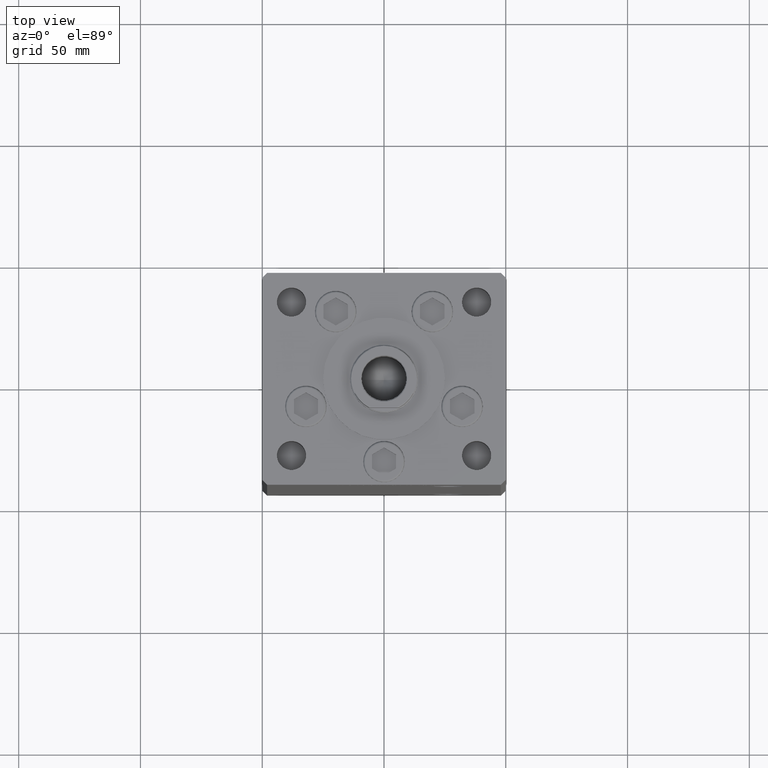
[diagram: clean part render]
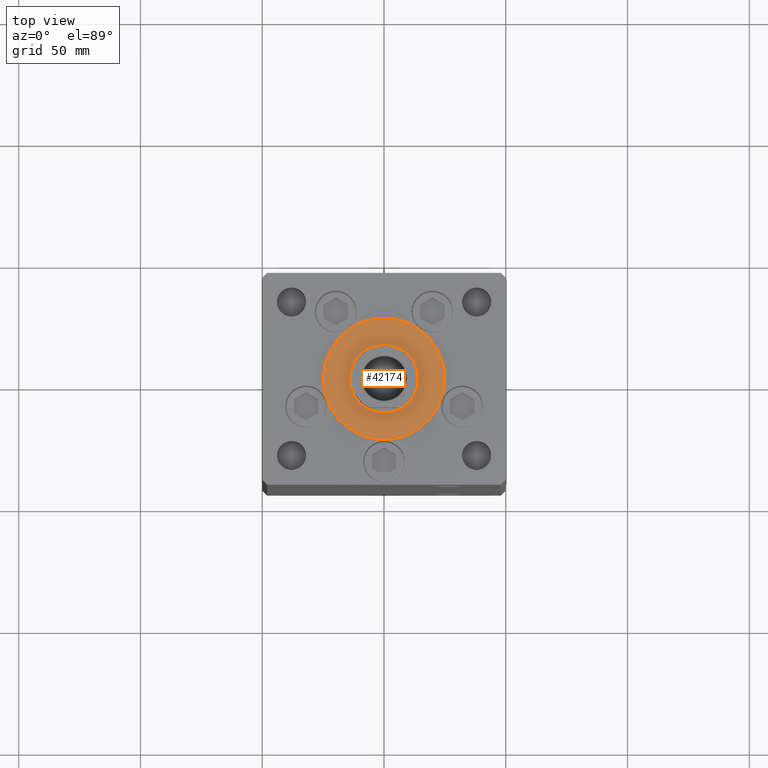
[diagram: same view with one face highlighted and labeled with its STEP entity id]
A machine part, top view. The second image highlights one B-rep face of the part: STEP entity #42174.
In plain terms, the highlighted planar face has unit normal (0, 0, 1).
Its self-contained STEP definition (entity closure, byte-faithful):
#195 = CIRCLE ( 'NONE', #35579, 14.00000000000000000 ) ;
#1585 = AXIS2_PLACEMENT_3D ( 'NONE', #25269, #21055, #45836 ) ;
#3571 = AXIS2_PLACEMENT_3D ( 'NONE', #52202, #23995, #36629 ) ;
#5435 = CARTESIAN_POINT ( 'NONE',  ( 14.00000000000000000, -6.938893903907228378E-15, 2.000000000000000000 ) ) ;
#7063 = DIRECTION ( 'NONE',  ( 1.000000000000000000, 0.000000000000000000, -0.000000000000000000 ) ) ;
#8889 = CARTESIAN_POINT ( 'NONE',  ( 0.000000000000000000, -6.938893903907228378E-15, 2.000000000000000000 ) ) ;
#9600 = CARTESIAN_POINT ( 'NONE',  ( 25.00000000000000000, -3.877276906038844941E-15, 2.000000000000000000 ) ) ;
#10214 = CIRCLE ( 'NONE', #46426, 14.00000000000000000 ) ;
#11662 = EDGE_CURVE ( 'NONE', #16478, #34691, #12525, .T. ) ;
#12525 = CIRCLE ( 'NONE', #1585, 25.00000000000000000 ) ;
#13564 = ORIENTED_EDGE ( 'NONE', *, *, #11662, .T. ) ;
#16478 = VERTEX_POINT ( 'NONE', #9600 ) ;
#17612 = CARTESIAN_POINT ( 'NONE',  ( -14.00000000000000000, -5.224388385100933937E-15, 2.000000000000000000 ) ) ;
#17884 = PLANE ( 'NONE',  #28039 ) ;
#18672 = FACE_OUTER_BOUND ( 'NONE', #19601, .T. ) ;
#19601 = EDGE_LOOP ( 'NONE', ( #51113, #13564 ) ) ;
#19893 = DIRECTION ( 'NONE',  ( 1.000000000000000000, 0.000000000000000000, 0.000000000000000000 ) ) ;
#20038 = VERTEX_POINT ( 'NONE', #17612 ) ;
#20294 = VERTEX_POINT ( 'NONE', #5435 ) ;
#20732 = EDGE_CURVE ( 'NONE', #34691, #16478, #27961, .T. ) ;
#21055 = DIRECTION ( 'NONE',  ( 0.000000000000000000, 0.000000000000000000, 1.000000000000000000 ) ) ;
#21820 = DIRECTION ( 'NONE',  ( 0.000000000000000000, 0.000000000000000000, 1.000000000000000000 ) ) ;
#23083 = CARTESIAN_POINT ( 'NONE',  ( 0.000000000000000000, -6.938893903907228378E-15, 2.000000000000000000 ) ) ;
#23995 = DIRECTION ( 'NONE',  ( 0.000000000000000000, 0.000000000000000000, 1.000000000000000000 ) ) ;
#25269 = CARTESIAN_POINT ( 'NONE',  ( 0.000000000000000000, -6.938893903907228378E-15, 2.000000000000000000 ) ) ;
#27961 = CIRCLE ( 'NONE', #3571, 25.00000000000000000 ) ;
#28039 = AXIS2_PLACEMENT_3D ( 'NONE', #46100, #46630, #7063 ) ;
#29438 = ORIENTED_EDGE ( 'NONE', *, *, #33776, .F. ) ;
#33776 = EDGE_CURVE ( 'NONE', #20038, #20294, #10214, .T. ) ;
#33864 = EDGE_LOOP ( 'NONE', ( #40598, #29438 ) ) ;
#34691 = VERTEX_POINT ( 'NONE', #50951 ) ;
#35579 = AXIS2_PLACEMENT_3D ( 'NONE', #23083, #51044, #19893 ) ;
#36629 = DIRECTION ( 'NONE',  ( 1.000000000000000000, 0.000000000000000000, 0.000000000000000000 ) ) ;
#40598 = ORIENTED_EDGE ( 'NONE', *, *, #41808, .F. ) ;
#41808 = EDGE_CURVE ( 'NONE', #20294, #20038, #195, .T. ) ;
#42174 = ADVANCED_FACE ( 'NONE', ( #47146, #18672 ), #17884, .T. ) ;
#45811 = DIRECTION ( 'NONE',  ( 1.000000000000000000, 0.000000000000000000, 0.000000000000000000 ) ) ;
#45836 = DIRECTION ( 'NONE',  ( 1.000000000000000000, 0.000000000000000000, 0.000000000000000000 ) ) ;
#46100 = CARTESIAN_POINT ( 'NONE',  ( 0.000000000000000000, -6.938893903907228378E-15, 2.000000000000000000 ) ) ;
#46426 = AXIS2_PLACEMENT_3D ( 'NONE', #8889, #21820, #45811 ) ;
#46630 = DIRECTION ( 'NONE',  ( 0.000000000000000000, 0.000000000000000000, 1.000000000000000000 ) ) ;
#47146 = FACE_BOUND ( 'NONE', #33864, .T. ) ;
#50951 = CARTESIAN_POINT ( 'NONE',  ( -25.00000000000000000, -6.938893903907228378E-15, 2.000000000000000000 ) ) ;
#51044 = DIRECTION ( 'NONE',  ( 0.000000000000000000, 0.000000000000000000, 1.000000000000000000 ) ) ;
#51113 = ORIENTED_EDGE ( 'NONE', *, *, #20732, .T. ) ;
#52202 = CARTESIAN_POINT ( 'NONE',  ( 0.000000000000000000, -6.938893903907228378E-15, 2.000000000000000000 ) ) ;